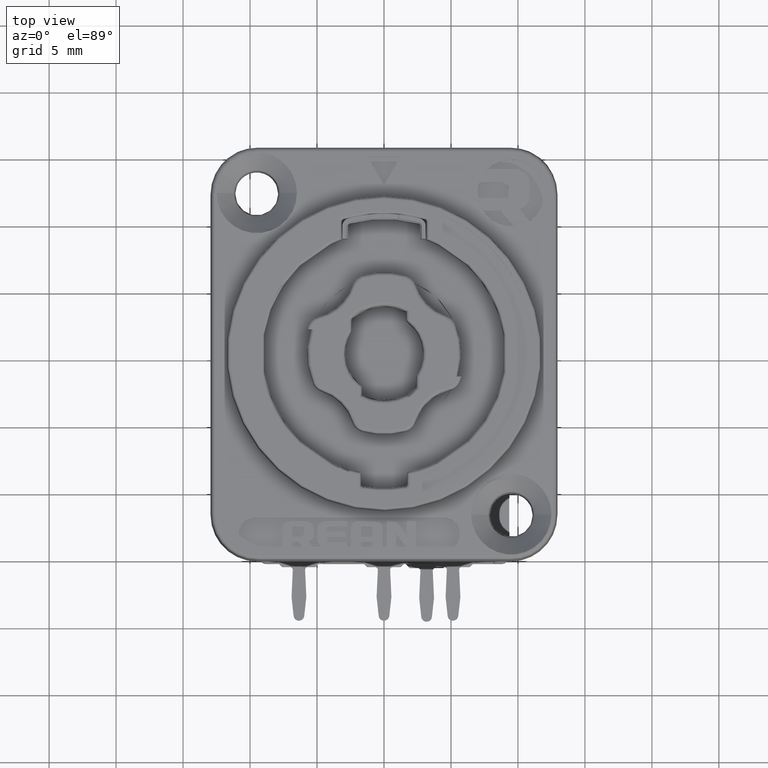
[diagram: clean part render]
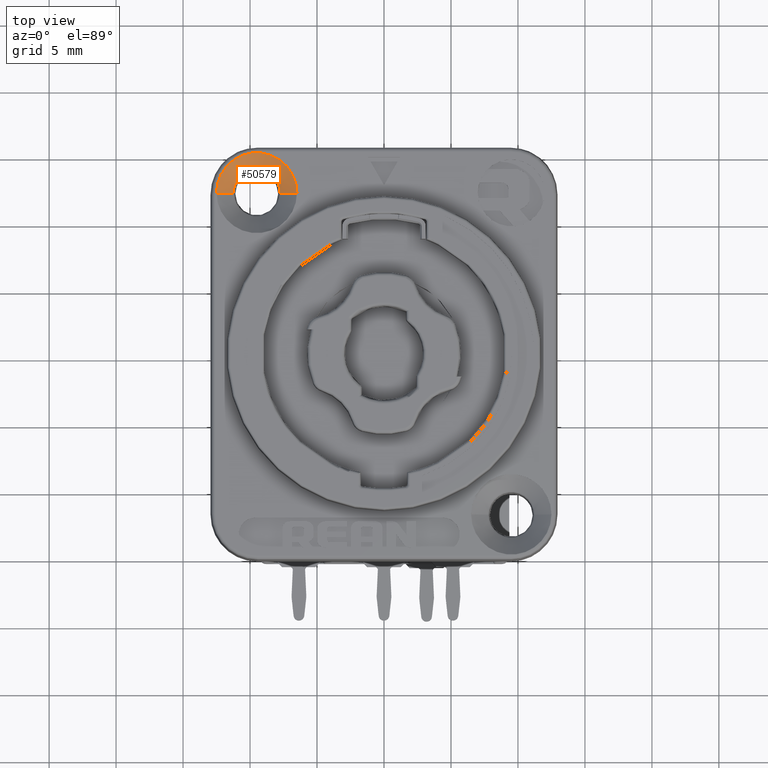
[diagram: same view with one face highlighted and labeled with its STEP entity id]
A machine part, top view. The second image highlights one B-rep face of the part: STEP entity #50579.
In plain terms, the highlighted conical surface has half-angle 47.5 deg.
Its self-contained STEP definition (entity closure, byte-faithful):
#17172=CARTESIAN_POINT('',(-9.5E0,1.2E1,4.3E0));
#17173=DIRECTION('',(0.E0,0.E0,-1.E0));
#17174=DIRECTION('',(-1.E0,0.E0,0.E0));
#17175=AXIS2_PLACEMENT_3D('',#17172,#17173,#17174);
#17181=CARTESIAN_POINT('',(-9.5E0,1.2E1,3.153255658202E0));
#17182=DIRECTION('',(0.E0,0.E0,1.E0));
#17183=DIRECTION('',(1.E0,0.E0,0.E0));
#17184=AXIS2_PLACEMENT_3D('',#17181,#17182,#17183);
#17186=DIRECTION('',(-7.372773368101E-1,1.465126043410E-14,6.755902076157E-1));
#17187=VECTOR('',#17186,1.697396334156E0);
#17188=CARTESIAN_POINT('',(-1.124854815124E1,1.2E1,3.153255658202E0));
#17189=LINE('',#17188,#17187);
#17190=DIRECTION('',(7.372773368101E-1,-1.360474183167E-14,6.755902076157E-1));
#17191=VECTOR('',#17190,1.697396334156E0);
#17192=CARTESIAN_POINT('',(-7.751451848758E0,1.2E1,3.153255658202E0));
#17193=LINE('',#17192,#17191);
#22426=CARTESIAN_POINT('',(-1.25E1,1.2E1,4.3E0));
#22427=CARTESIAN_POINT('',(-6.5E0,1.2E1,4.3E0));
#22428=VERTEX_POINT('',#22426);
#22429=VERTEX_POINT('',#22427);
#23501=CARTESIAN_POINT('',(-1.124854815124E1,1.2E1,3.153255658202E0));
#23502=CARTESIAN_POINT('',(-7.751451848758E0,1.2E1,3.153255658202E0));
#23503=VERTEX_POINT('',#23501);
#23504=VERTEX_POINT('',#23502);
#50565=CARTESIAN_POINT('',(-9.5E0,1.2E1,3.726627829101E0));
#50566=DIRECTION('',(0.E0,0.E0,1.E0));
#50567=DIRECTION('',(-1.E0,0.E0,0.E0));
#50568=AXIS2_PLACEMENT_3D('',#50565,#50566,#50567);
#50569=CONICAL_SURFACE('',#50568,2.374274075621E0,4.75E1);
#50571=ORIENTED_EDGE('',*,*,#50570,.T.);
#50573=ORIENTED_EDGE('',*,*,#50572,.T.);
#50574=ORIENTED_EDGE('',*,*,#50559,.T.);
#50576=ORIENTED_EDGE('',*,*,#50575,.F.);
#50577=EDGE_LOOP('',(#50571,#50573,#50574,#50576));
#50578=FACE_OUTER_BOUND('',#50577,.F.);
#50579=ADVANCED_FACE('',(#50578),#50569,.F.);
#17176=CIRCLE('',#17175,3.E0);
#17185=CIRCLE('',#17184,1.748548151242E0);
#50559=EDGE_CURVE('',#22428,#22429,#17176,.T.);
#50570=EDGE_CURVE('',#23504,#23503,#17185,.T.);
#50572=EDGE_CURVE('',#23503,#22428,#17189,.T.);
#50575=EDGE_CURVE('',#23504,#22429,#17193,.T.);